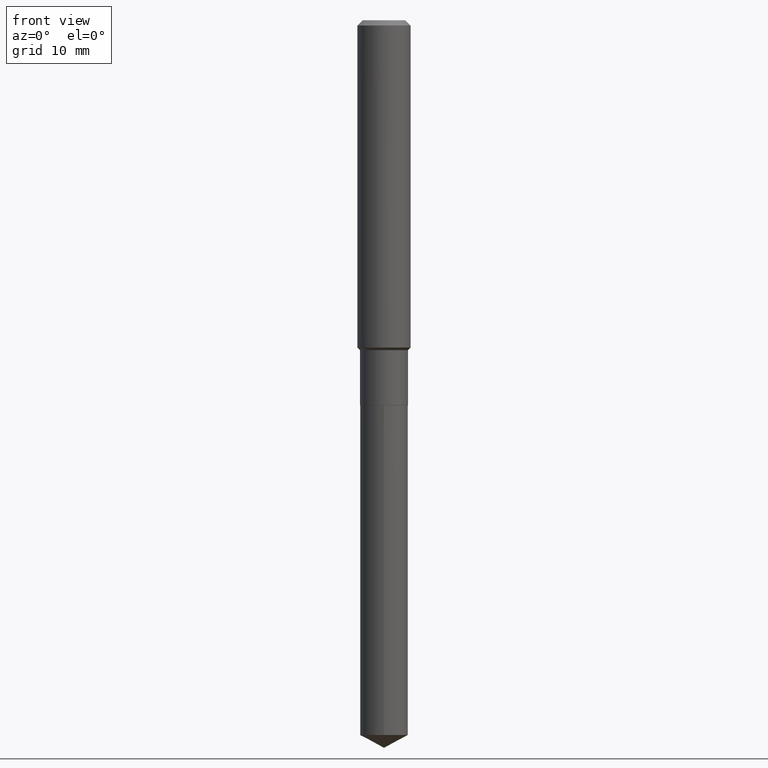
[diagram: clean part render]
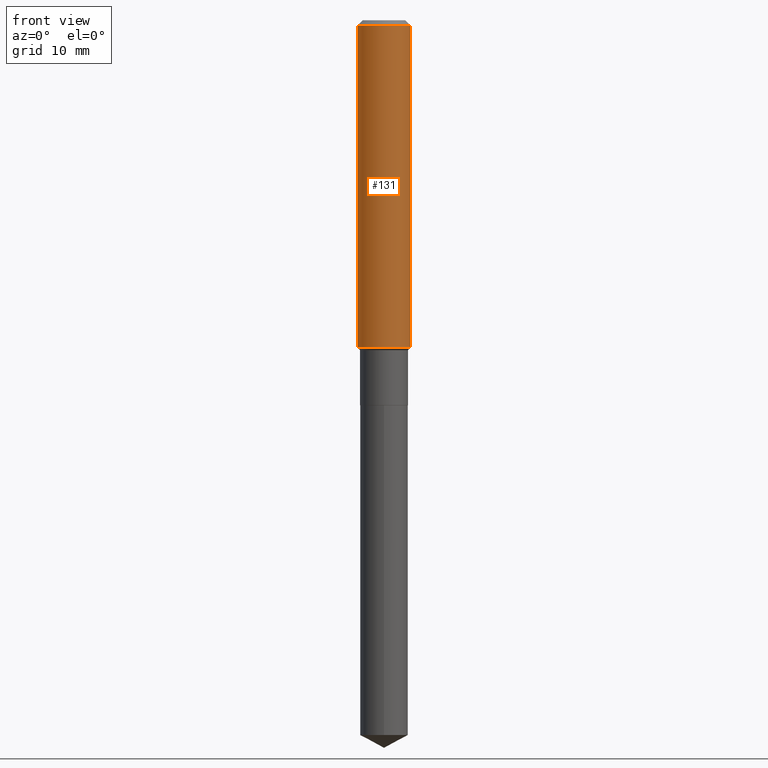
[diagram: same view with one face highlighted and labeled with its STEP entity id]
A machine part, front view. The second image highlights one B-rep face of the part: STEP entity #131.
In plain terms, the highlighted cylindrical surface (edge-blend (fillet) strip) has radius 2.9997 mm, axis along (-0, 0, 1).
Its self-contained STEP definition (entity closure, byte-faithful):
#20 = AXIS2_PLACEMENT_3D ( 'NONE', #162, #383, #310 ) ;
#46 = LINE ( 'NONE', #263, #138 ) ;
#58 = ORIENTED_EDGE ( 'NONE', *, *, #315, .F. ) ;
#83 = CARTESIAN_POINT ( 'NONE',  ( 0.1181000000000001632, -5.895366240636649477E-15, -1.452299999999999924 ) ) ;
#129 = DIRECTION ( 'NONE',  ( 1.000000000000000000, -6.982962677686270655E-15, 0.000000000000000000 ) ) ;
#131 = ADVANCED_FACE ( 'NONE', ( #338 ), #225, .T. ) ;
#138 = VECTOR ( 'NONE', #269, 39.37007874015748143 ) ;
#142 = EDGE_CURVE ( 'NONE', #205, #246, #377, .T. ) ;
#150 = ORIENTED_EDGE ( 'NONE', *, *, #142, .F. ) ;
#162 = CARTESIAN_POINT ( 'NONE',  ( 5.776197320209327532E-31, -8.246878922347559293E-17, -0.02362000000000014088 ) ) ;
#203 = CIRCLE ( 'NONE', #20, 0.1180999999999999966 ) ;
#205 = VERTEX_POINT ( 'NONE', #480 ) ;
#221 = AXIS2_PLACEMENT_3D ( 'NONE', #253, #445, #448 ) ;
#225 = CYLINDRICAL_SURFACE ( 'NONE', #221, 0.1181000000000000799 ) ;
#233 = CARTESIAN_POINT ( 'NONE',  ( -0.1180999999999999966, -1.737422597880008561E-15, -0.02362000000000014088 ) ) ;
#246 = VERTEX_POINT ( 'NONE', #233 ) ;
#253 = CARTESIAN_POINT ( 'NONE',  ( 0.000000000000000000, 0.000000000000000000, 0.000000000000000000 ) ) ;
#261 = CARTESIAN_POINT ( 'NONE',  ( -0.1181000000000000799, 8.391509709326788873E-16, -5.809262341591047988E-30 ) ) ;
#263 = CARTESIAN_POINT ( 'NONE',  ( 0.1181000000000000799, -8.246878922347486570E-16, 5.758764772215004644E-30 ) ) ;
#269 = DIRECTION ( 'NONE',  ( -2.445468806185136877E-29, 3.491481338843145188E-15, 1.000000000000000000 ) ) ;
#275 = EDGE_CURVE ( 'NONE', #279, #282, #46, .T. ) ;
#279 = VERTEX_POINT ( 'NONE', #83 ) ;
#281 = EDGE_LOOP ( 'NONE', ( #150, #378, #397, #58 ) ) ;
#282 = VERTEX_POINT ( 'NONE', #417 ) ;
#310 = DIRECTION ( 'NONE',  ( 1.000000000000000000, -6.982962677686266711E-15, 0.000000000000000000 ) ) ;
#315 = EDGE_CURVE ( 'NONE', #246, #282, #203, .T. ) ;
#316 = EDGE_CURVE ( 'NONE', #205, #279, #425, .T. ) ;
#338 = FACE_OUTER_BOUND ( 'NONE', #281, .T. ) ;
#377 = LINE ( 'NONE', #261, #409 ) ;
#378 = ORIENTED_EDGE ( 'NONE', *, *, #316, .T. ) ;
#383 = DIRECTION ( 'NONE',  ( -2.445468806185136597E-29, 3.491481338843145583E-15, 1.000000000000000000 ) ) ;
#385 = CARTESIAN_POINT ( 'NONE',  ( 3.551554347222674167E-29, -5.070678348401900425E-15, -1.452299999999999924 ) ) ;
#397 = ORIENTED_EDGE ( 'NONE', *, *, #275, .T. ) ;
#409 = VECTOR ( 'NONE', #488, 39.37007874015748143 ) ;
#417 = CARTESIAN_POINT ( 'NONE',  ( 0.1180999999999999966, -9.071566814582237199E-16, -0.02362000000000014088 ) ) ;
#421 = AXIS2_PLACEMENT_3D ( 'NONE', #385, #462, #129 ) ;
#425 = CIRCLE ( 'NONE', #421, 0.1181000000000001632 ) ;
#445 = DIRECTION ( 'NONE',  ( -2.445468806185136597E-29, 3.491481338843145583E-15, 1.000000000000000000 ) ) ;
#448 = DIRECTION ( 'NONE',  ( 1.000000000000000000, -6.982962677686266711E-15, 4.876176775795936353E-29 ) ) ;
#462 = DIRECTION ( 'NONE',  ( -2.445468806185136597E-29, 3.491481338843145583E-15, 1.000000000000000000 ) ) ;
#480 = CARTESIAN_POINT ( 'NONE',  ( -0.1181000000000001632, -4.231527377469220651E-15, -1.452299999999999924 ) ) ;
#488 = DIRECTION ( 'NONE',  ( -2.445468806185136877E-29, 3.491481338843145188E-15, 1.000000000000000000 ) ) ;